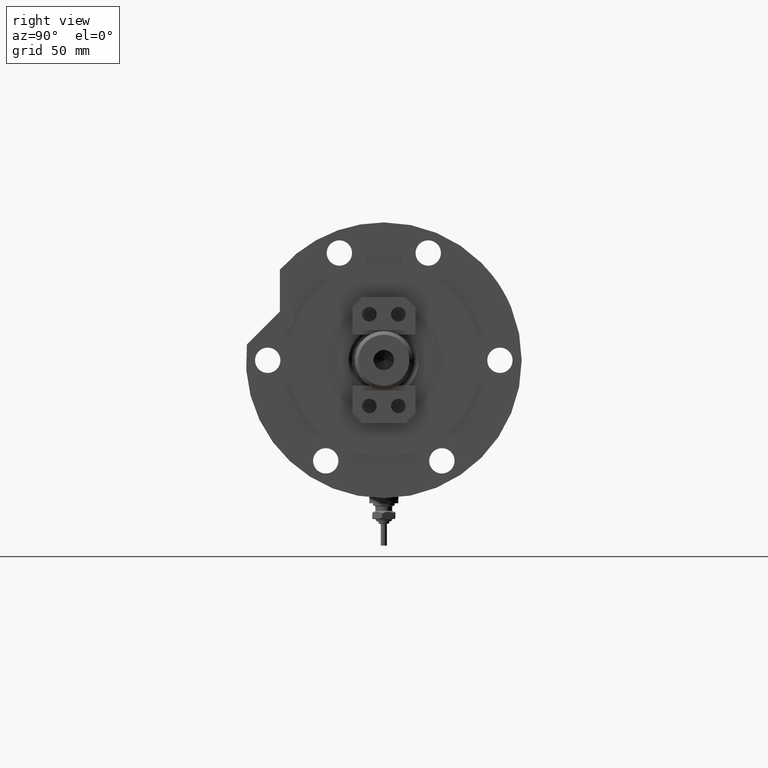
[diagram: clean part render]
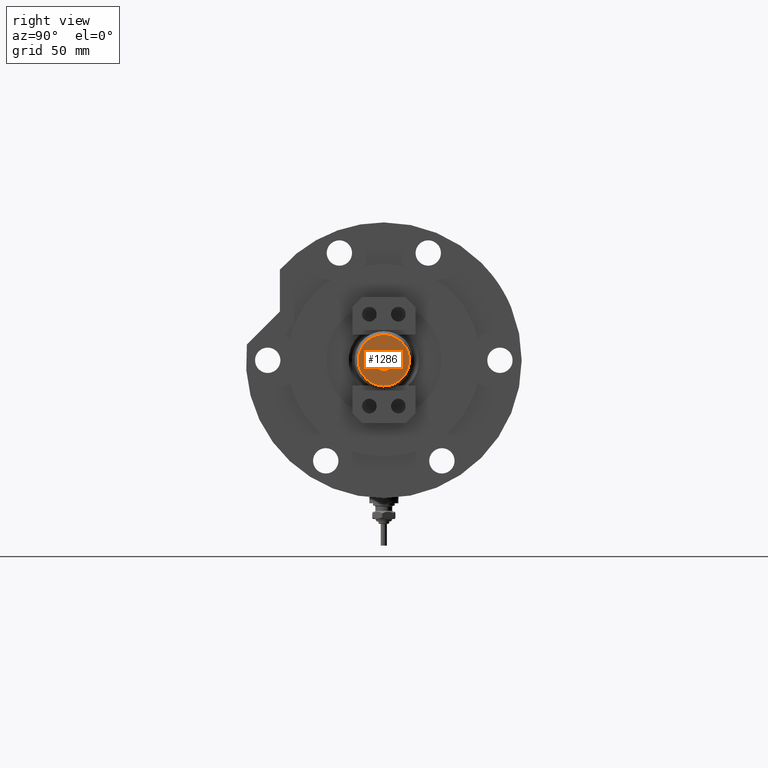
[diagram: same view with one face highlighted and labeled with its STEP entity id]
A machine part, right view. The second image highlights one B-rep face of the part: STEP entity #1286.
In plain terms, the highlighted planar face has unit normal (1, 0, -0).
Its self-contained STEP definition (entity closure, byte-faithful):
#49 = DIRECTION ( 'NONE',  ( 1.000000000000000000, 0.000000000000000000, 0.000000000000000000 ) ) ;
#51 = CARTESIAN_POINT ( 'NONE',  ( 0.000000000000000000, 0.000000000000000000, 207.6999999999999886 ) ) ;
#104 = AXIS2_PLACEMENT_3D ( 'NONE', #2999, #4339, #8114 ) ;
#220 = VERTEX_POINT ( 'NONE', #5130 ) ;
#239 = EDGE_LOOP ( 'NONE', ( #4220, #2510 ) ) ;
#467 = CARTESIAN_POINT ( 'NONE',  ( 0.000000000000000000, 0.000000000000000000, 207.6999999999999886 ) ) ;
#500 = DIRECTION ( 'NONE',  ( 1.000000000000000000, 0.000000000000000000, 0.000000000000000000 ) ) ;
#731 = DIRECTION ( 'NONE',  ( 1.000000000000000000, 0.000000000000000000, 0.000000000000000000 ) ) ;
#925 = CARTESIAN_POINT ( 'NONE',  ( 10.59999999999999787, 1.383850883036509067E-15, 207.6999999999999886 ) ) ;
#935 = AXIS2_PLACEMENT_3D ( 'NONE', #51, #3935, #1859 ) ;
#1069 = PLANE ( 'NONE',  #104 ) ;
#1286 = ADVANCED_FACE ( 'NONE', ( #1773, #3120 ), #1069, .T. ) ;
#1603 = CIRCLE ( 'NONE', #935, 4.249999999999997335 ) ;
#1773 = FACE_OUTER_BOUND ( 'NONE', #6381, .T. ) ;
#1859 = DIRECTION ( 'NONE',  ( 1.000000000000000000, 0.000000000000000000, 0.000000000000000000 ) ) ;
#2149 = ORIENTED_EDGE ( 'NONE', *, *, #4210, .T. ) ;
#2440 = CARTESIAN_POINT ( 'NONE',  ( -4.249999999999997335, 5.204748896376248727E-16, 207.6999999999999886 ) ) ;
#2510 = ORIENTED_EDGE ( 'NONE', *, *, #3186, .F. ) ;
#2684 = CIRCLE ( 'NONE', #4685, 10.59999999999999787 ) ;
#2999 = CARTESIAN_POINT ( 'NONE',  ( 0.000000000000000000, 0.000000000000000000, 207.6999999999999886 ) ) ;
#3120 = FACE_BOUND ( 'NONE', #239, .T. ) ;
#3186 = EDGE_CURVE ( 'NONE', #5211, #220, #6167, .T. ) ;
#3200 = DIRECTION ( 'NONE',  ( 0.000000000000000000, 0.000000000000000000, 1.000000000000000000 ) ) ;
#3315 = ORIENTED_EDGE ( 'NONE', *, *, #6625, .T. ) ;
#3926 = EDGE_CURVE ( 'NONE', #220, #5211, #1603, .T. ) ;
#3935 = DIRECTION ( 'NONE',  ( -0.000000000000000000, -0.000000000000000000, 1.000000000000000000 ) ) ;
#4210 = EDGE_CURVE ( 'NONE', #8307, #5605, #2684, .T. ) ;
#4220 = ORIENTED_EDGE ( 'NONE', *, *, #3926, .F. ) ;
#4339 = DIRECTION ( 'NONE',  ( 0.000000000000000000, 0.000000000000000000, 1.000000000000000000 ) ) ;
#4685 = AXIS2_PLACEMENT_3D ( 'NONE', #467, #5575, #500 ) ;
#4721 = AXIS2_PLACEMENT_3D ( 'NONE', #6353, #3200, #49 ) ;
#5130 = CARTESIAN_POINT ( 'NONE',  ( 4.249999999999997335, 0.000000000000000000, 207.6999999999999886 ) ) ;
#5211 = VERTEX_POINT ( 'NONE', #2440 ) ;
#5386 = CIRCLE ( 'NONE', #4721, 10.59999999999999787 ) ;
#5575 = DIRECTION ( 'NONE',  ( 0.000000000000000000, 0.000000000000000000, 1.000000000000000000 ) ) ;
#5605 = VERTEX_POINT ( 'NONE', #7776 ) ;
#5801 = DIRECTION ( 'NONE',  ( -0.000000000000000000, -0.000000000000000000, 1.000000000000000000 ) ) ;
#6167 = CIRCLE ( 'NONE', #6982, 4.249999999999997335 ) ;
#6353 = CARTESIAN_POINT ( 'NONE',  ( 0.000000000000000000, 0.000000000000000000, 207.6999999999999886 ) ) ;
#6381 = EDGE_LOOP ( 'NONE', ( #3315, #2149 ) ) ;
#6625 = EDGE_CURVE ( 'NONE', #5605, #8307, #5386, .T. ) ;
#6982 = AXIS2_PLACEMENT_3D ( 'NONE', #7827, #5801, #731 ) ;
#7776 = CARTESIAN_POINT ( 'NONE',  ( -10.59999999999999787, 0.000000000000000000, 207.6999999999999886 ) ) ;
#7827 = CARTESIAN_POINT ( 'NONE',  ( 0.000000000000000000, 0.000000000000000000, 207.6999999999999886 ) ) ;
#8114 = DIRECTION ( 'NONE',  ( 1.000000000000000000, 0.000000000000000000, -0.000000000000000000 ) ) ;
#8307 = VERTEX_POINT ( 'NONE', #925 ) ;